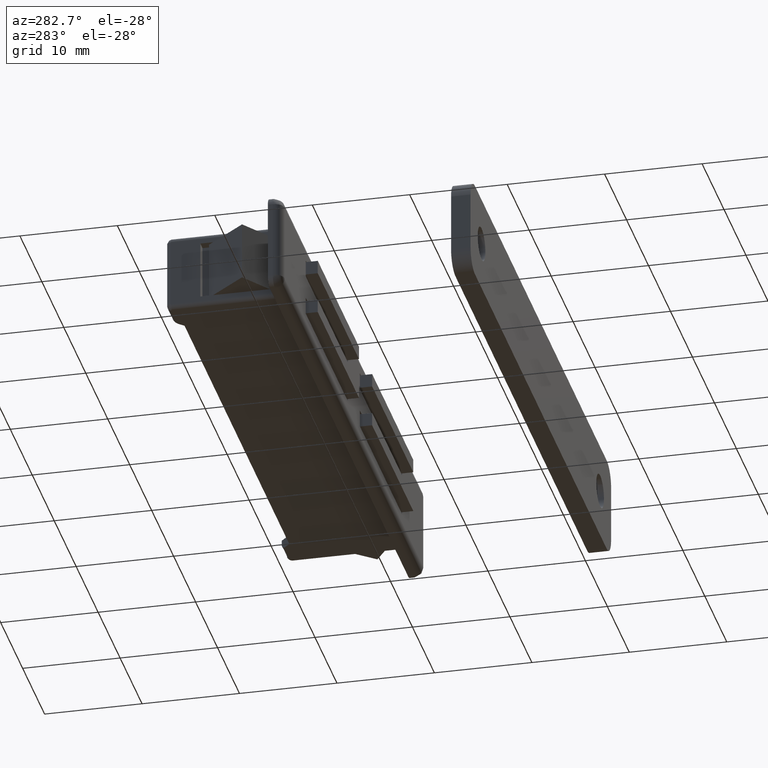
[diagram: clean part render]
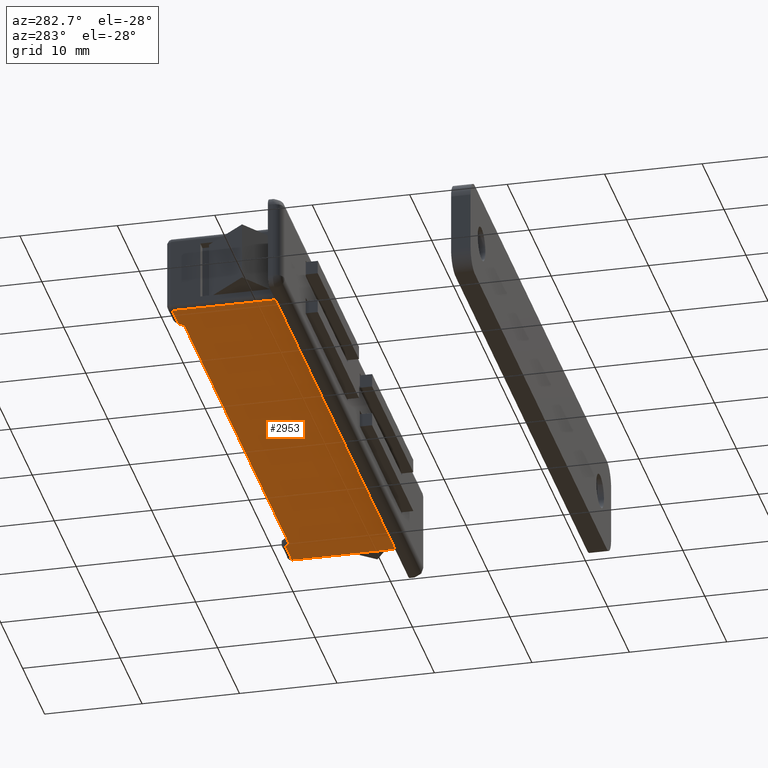
[diagram: same view with one face highlighted and labeled with its STEP entity id]
A machine part, auxiliary view. The second image highlights one B-rep face of the part: STEP entity #2953.
In plain terms, the highlighted face is a freeform B-spline surface patch.
Its self-contained STEP definition (entity closure, byte-faithful):
#1886=CARTESIAN_POINT('',(27.250004000000001,-0.500000000000000,-4.0));
#1887=VERTEX_POINT('',#1886);
#1927=CARTESIAN_POINT('',(24.350003000000001,-0.500000000000000,-4.0));
#1928=VERTEX_POINT('',#1927);
#1948=CARTESIAN_POINT('',(24.350003000000001,-0.500000000000000,-4.0));
#1949=CARTESIAN_POINT('',(27.250004000000001,-0.500000000000000,-4.0));
#1950=QUASI_UNIFORM_CURVE('',1,(#1948,#1949),.UNSPECIFIED.,.F.,.U.);
#1951=EDGE_CURVE('',#1928,#1887,#1950,.T.);
#1970=CARTESIAN_POINT('',(27.250004000000001,-11.500000000000000,-4.0));
#1971=VERTEX_POINT('',#1970);
#1984=CARTESIAN_POINT('',(27.250004000000001,-0.500000000000000,-4.0));
#1985=CARTESIAN_POINT('',(27.250004000000001,-11.500000000000000,-4.0));
#1986=QUASI_UNIFORM_CURVE('',1,(#1984,#1985),.UNSPECIFIED.,.F.,.U.);
#1987=EDGE_CURVE('',#1887,#1971,#1986,.T.);
#2338=CARTESIAN_POINT('',(-27.250007000000000,-0.500000000000000,-4.0));
#2339=VERTEX_POINT('',#2338);
#2379=CARTESIAN_POINT('',(-27.250007000000000,-11.500000000000000,-4.0));
#2380=VERTEX_POINT('',#2379);
#2397=CARTESIAN_POINT('',(-27.250007000000000,-11.500000000000000,-4.0));
#2398=CARTESIAN_POINT('',(-27.250007000000000,-0.500000000000000,-4.0));
#2399=QUASI_UNIFORM_CURVE('',1,(#2397,#2398),.UNSPECIFIED.,.F.,.U.);
#2400=EDGE_CURVE('',#2380,#2339,#2399,.T.);
#2419=CARTESIAN_POINT('',(-24.350002000000000,-0.500000000000000,-4.0));
#2420=VERTEX_POINT('',#2419);
#2436=CARTESIAN_POINT('',(-27.250007000000000,-0.500000000000000,-4.0));
#2437=CARTESIAN_POINT('',(-24.350002000000000,-0.500000000000000,-4.0));
#2438=QUASI_UNIFORM_CURVE('',1,(#2436,#2437),.UNSPECIFIED.,.F.,.U.);
#2439=EDGE_CURVE('',#2339,#2420,#2438,.T.);
#2918=CARTESIAN_POINT('',(-29.972283467032621,-12.049449978679871,-4.0));
#2919=CARTESIAN_POINT('',(29.972280954300700,-12.049449978679871,-4.0));
#2920=CARTESIAN_POINT('',(-29.972283467032621,0.049450273722858,-4.0));
#2921=CARTESIAN_POINT('',(29.972280954300700,0.049450273722858,-4.0));
#2922=B_SPLINE_SURFACE_WITH_KNOTS('',1,1,((#2918,#2920),(#2919,#2921)),.UNSPECIFIED.,.F.,.F.,.U.,(2,2),(2,2),(0.0,59.944564421333311),(0.0,12.098900252402730),.UNSPECIFIED.);
#2923=CARTESIAN_POINT('',(-27.250007000000000,-11.500000000000000,-4.0));
#2924=CARTESIAN_POINT('',(27.250004000000001,-11.500000000000000,-4.0));
#2925=QUASI_UNIFORM_CURVE('',1,(#2923,#2924),.UNSPECIFIED.,.F.,.U.);
#2926=EDGE_CURVE('',#2380,#1971,#2925,.T.);
#2927=ORIENTED_EDGE('',*,*,#2926,.F.);
#2928=ORIENTED_EDGE('',*,*,#2400,.T.);
#2929=ORIENTED_EDGE('',*,*,#2439,.T.);
#2930=CARTESIAN_POINT('',(-23.850006000000000,-1.0,-4.0));
#2931=VERTEX_POINT('',#2930);
#2932=CARTESIAN_POINT('',(-23.850006000000000,-1.0,-4.0));
#2933=CARTESIAN_POINT('',(-24.350002000000000,-0.500000000000000,-4.0));
#2934=QUASI_UNIFORM_CURVE('',1,(#2932,#2933),.UNSPECIFIED.,.F.,.U.);
#2935=EDGE_CURVE('',#2931,#2420,#2934,.T.);
#2936=ORIENTED_EDGE('',*,*,#2935,.F.);
#2937=CARTESIAN_POINT('',(23.850003000000001,-1.0,-4.0));
#2938=VERTEX_POINT('',#2937);
#2939=CARTESIAN_POINT('',(23.850003000000001,-1.0,-4.0));
#2940=CARTESIAN_POINT('',(-23.850006000000000,-1.0,-4.0));
#2941=QUASI_UNIFORM_CURVE('',1,(#2939,#2940),.UNSPECIFIED.,.F.,.U.);
#2942=EDGE_CURVE('',#2938,#2931,#2941,.T.);
#2943=ORIENTED_EDGE('',*,*,#2942,.F.);
#2944=CARTESIAN_POINT('',(24.350003000000001,-0.500000000000000,-4.0));
#2945=CARTESIAN_POINT('',(23.850003000000001,-1.0,-4.0));
#2946=QUASI_UNIFORM_CURVE('',1,(#2944,#2945),.UNSPECIFIED.,.F.,.U.);
#2947=EDGE_CURVE('',#1928,#2938,#2946,.T.);
#2948=ORIENTED_EDGE('',*,*,#2947,.F.);
#2949=ORIENTED_EDGE('',*,*,#1951,.T.);
#2950=ORIENTED_EDGE('',*,*,#1987,.T.);
#2951=EDGE_LOOP('',(#2927,#2928,#2929,#2936,#2943,#2948,#2949,#2950));
#2952=FACE_OUTER_BOUND('',#2951,.T.);
#2953=ADVANCED_FACE('',(#2952),#2922,.F.);